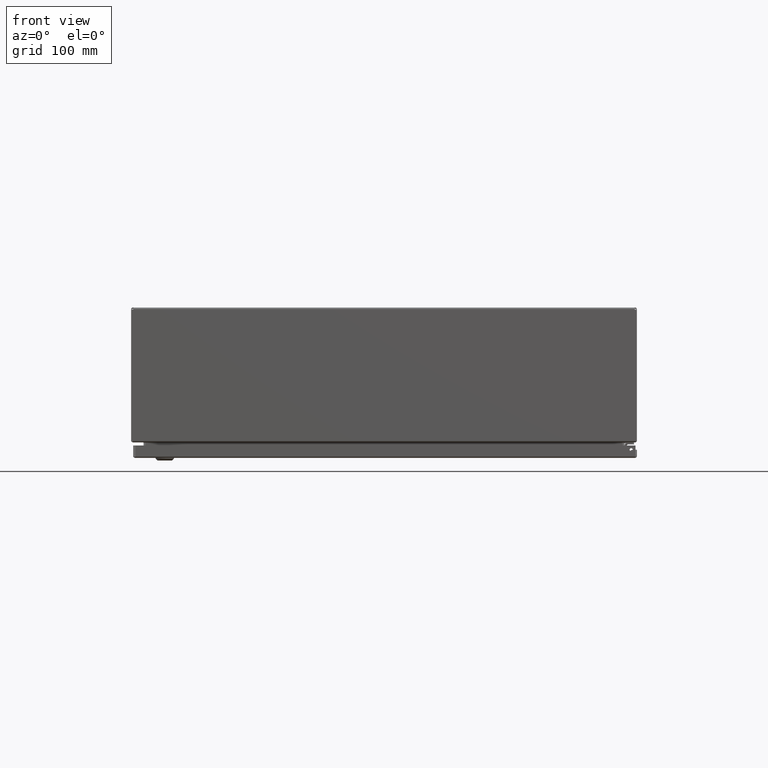
[diagram: clean part render]
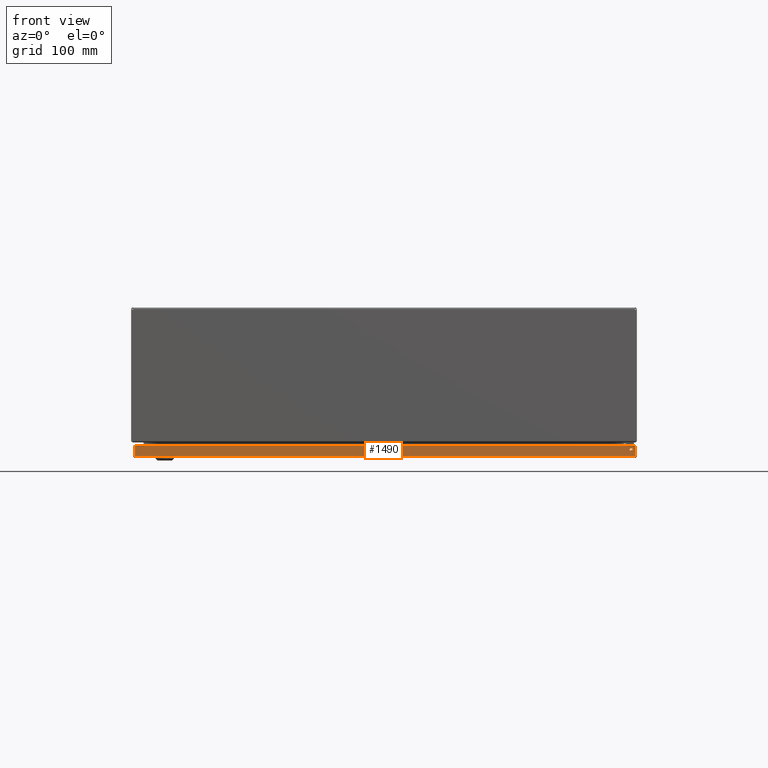
[diagram: same view with one face highlighted and labeled with its STEP entity id]
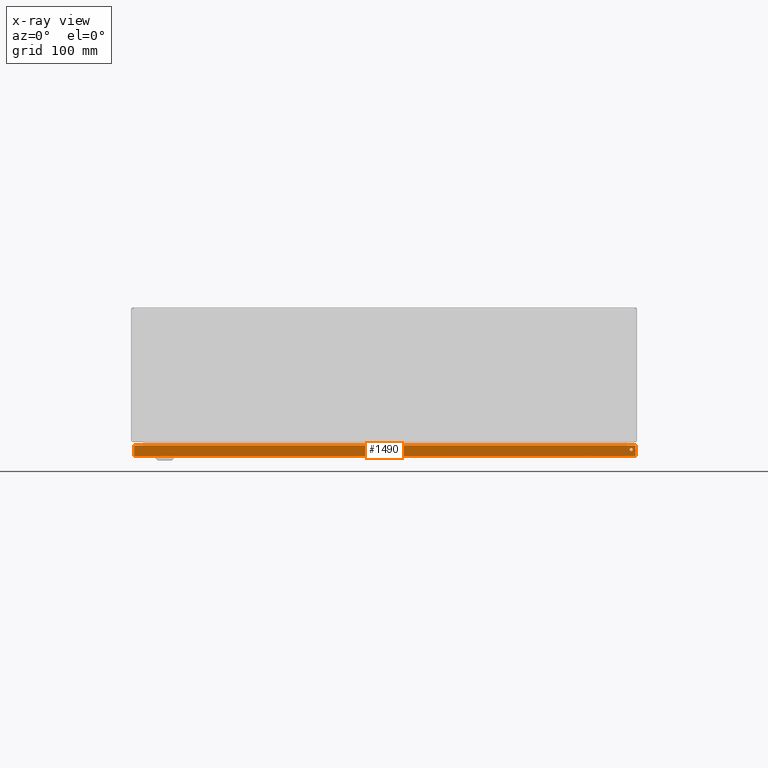
[diagram: x-ray of the same camera — body ghosted, the highlighted face saturated]
A machine part, front view. The second image highlights one B-rep face of the part: STEP entity #1490.
The next image is the same camera in x-ray: the body ghosted, the highlighted face saturated — about 0% of this face is hidden behind the body in this view.
In plain terms, the highlighted planar face has unit normal (0, 1, 0).
Its self-contained STEP definition (entity closure, byte-faithful):
#1058=CARTESIAN_POINT('',(29.633951456543976,1.123679E-014,0.480000000001819));
#1059=VERTEX_POINT('',#1058);
#1060=CARTESIAN_POINT('',(29.539951456543974,1.118965E-014,0.480000000001819));
#1061=DIRECTION('',(0.0,1.0,0.0));
#1062=DIRECTION('',(-1.0,0.0,0.0));
#1063=AXIS2_PLACEMENT_3D('',#1060,#1061,#1062);
#1064=CIRCLE('',#1063,0.094000000000000);
#1065=EDGE_CURVE('',#1059,#1059,#1064,.T.);
#1236=CARTESIAN_POINT('',(0.085048543456039,1.573709E-015,0.105250000000001));
#1237=VERTEX_POINT('',#1236);
#1238=CARTESIAN_POINT('',(29.789951456543967,1.573709E-015,0.105250000000001));
#1239=VERTEX_POINT('',#1238);
#1240=CARTESIAN_POINT('',(0.085048543456038,1.573476E-015,0.105250000000000));
#1241=DIRECTION('',(1.0,0.0,0.0));
#1242=VECTOR('',#1241,29.704902913087928);
#1243=LINE('',#1240,#1242);
#1244=EDGE_CURVE('',#1237,#1239,#1243,.T.);
#1325=CARTESIAN_POINT('',(29.789951456543960,1.535456E-015,0.730000000000001));
#1326=VERTEX_POINT('',#1325);
#1327=CARTESIAN_POINT('',(29.789951456543960,1.502674E-015,0.730000000000001));
#1328=DIRECTION('',(0.0,0.0,-1.0));
#1329=VECTOR('',#1328,0.624750000000000);
#1330=LINE('',#1327,#1329);
#1331=EDGE_CURVE('',#1326,#1239,#1330,.T.);
#1440=CARTESIAN_POINT('',(0.085048543456039,1.535456E-015,0.730000000000001));
#1441=VERTEX_POINT('',#1440);
#1442=CARTESIAN_POINT('',(0.085048543456039,1.540927E-015,0.105250000000001));
#1443=DIRECTION('',(0.0,0.0,1.0));
#1444=VECTOR('',#1443,0.624750000000000);
#1445=LINE('',#1442,#1444);
#1446=EDGE_CURVE('',#1237,#1441,#1445,.T.);
#1464=CARTESIAN_POINT('',(0.085048543456039,1.502674E-015,0.730000000000001));
#1465=DIRECTION('',(1.0,0.0,0.0));
#1466=VECTOR('',#1465,29.704902913087921);
#1467=LINE('',#1464,#1466);
#1468=EDGE_CURVE('',#1441,#1326,#1467,.T.);
#1476=CARTESIAN_POINT('',(14.937500000000002,1.557709E-015,0.366567658134497));
#1477=DIRECTION('',(0.0,1.0,0.0));
#1478=DIRECTION('',(1.0,0.0,0.0));
#1479=AXIS2_PLACEMENT_3D('',#1476,#1477,#1478);
#1480=PLANE('',#1479);
#1481=ORIENTED_EDGE('',*,*,#1244,.T.);
#1482=ORIENTED_EDGE('',*,*,#1331,.F.);
#1483=ORIENTED_EDGE('',*,*,#1468,.F.);
#1484=ORIENTED_EDGE('',*,*,#1446,.F.);
#1485=EDGE_LOOP('',(#1481,#1482,#1483,#1484));
#1486=FACE_OUTER_BOUND('',#1485,.T.);
#1487=ORIENTED_EDGE('',*,*,#1065,.T.);
#1488=EDGE_LOOP('',(#1487));
#1489=FACE_BOUND('',#1488,.T.);
#1490=ADVANCED_FACE('',(#1486,#1489),#1480,.F.);